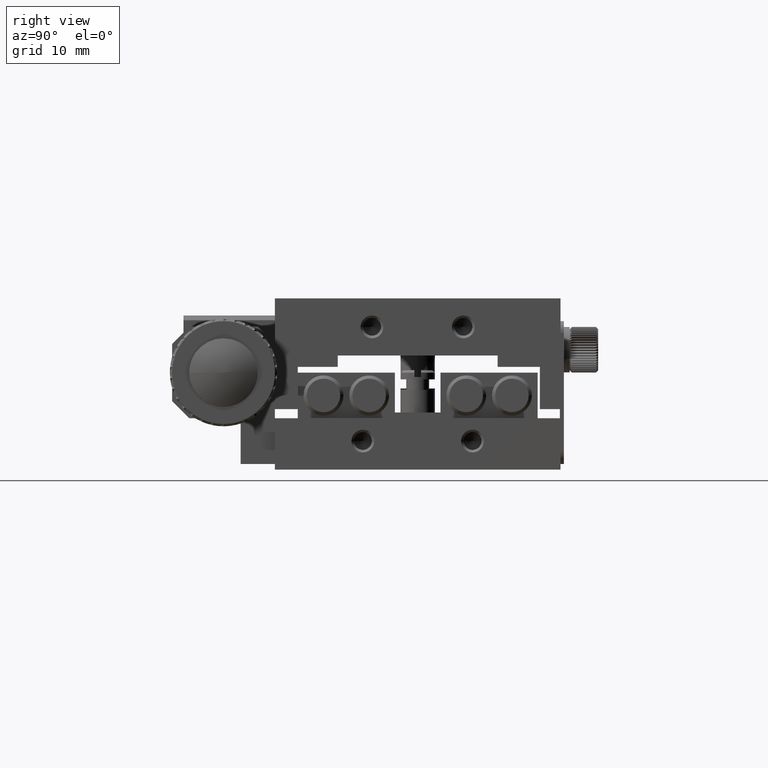
[diagram: clean part render]
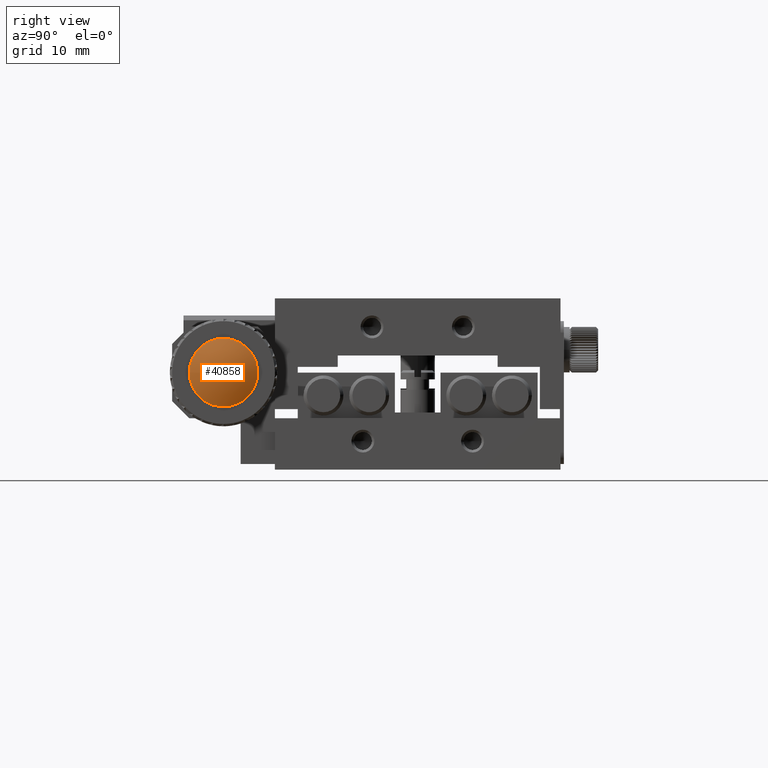
[diagram: same view with one face highlighted and labeled with its STEP entity id]
A machine part, right view. The second image highlights one B-rep face of the part: STEP entity #40858.
In plain terms, the highlighted toroidal blend (fillet) surface has major radius 0.0796 mm and minor (blend) radius 6.694 mm.
Its self-contained STEP definition (entity closure, byte-faithful):
#6453 = DIRECTION ( 'NONE',  ( 8.069859607474597540E-19, 1.000000000000000000, 0.000000000000000000 ) ) ;
#12527 = DIRECTION ( 'NONE',  ( 0.000000000000000000, 0.000000000000000000, 1.000000000000000000 ) ) ;
#12620 = DIRECTION ( 'NONE',  ( 1.000000000000000000, -8.069859607474597540E-19, 0.000000000000000000 ) ) ;
#15230 = DIRECTION ( 'NONE',  ( -1.000000000000000000, 0.000000000000000000, 0.000000000000000000 ) ) ;
#32432 = VERTEX_POINT ( 'NONE', #90873 ) ;
#36389 = EDGE_CURVE ( 'NONE', #32432, #32432, #64798, .T. ) ;
#40858 = ADVANCED_FACE ( 'NONE', ( #85267 ), #90326, .T. ) ;
#57259 = AXIS2_PLACEMENT_3D ( 'NONE', #86185, #12620, #6453 ) ;
#64798 = CIRCLE ( 'NONE', #76850, 2.999999999999999112 ) ;
#76850 = AXIS2_PLACEMENT_3D ( 'NONE', #79881, #15230, #12527 ) ;
#79881 = CARTESIAN_POINT ( 'NONE',  ( 36.44999999999966889, -17.00000000000000000, 8.500000000000000000 ) ) ;
#85267 = FACE_OUTER_BOUND ( 'NONE', #90832, .T. ) ;
#86185 = CARTESIAN_POINT ( 'NONE',  ( 30.50647366399205751, -17.00000000000000000, 8.499999999999994671 ) ) ;
#88374 = ORIENTED_EDGE ( 'NONE', *, *, #36389, .F. ) ;
#90326 = TOROIDAL_SURFACE ( 'NONE', #57259, -0.07963158400202295650, 6.693999999999915573 ) ;
#90832 = EDGE_LOOP ( 'NONE', ( #88374 ) ) ;
#90873 = CARTESIAN_POINT ( 'NONE',  ( 36.44999999999966889, -17.00000000000000000, 11.50000000000000000 ) ) ;